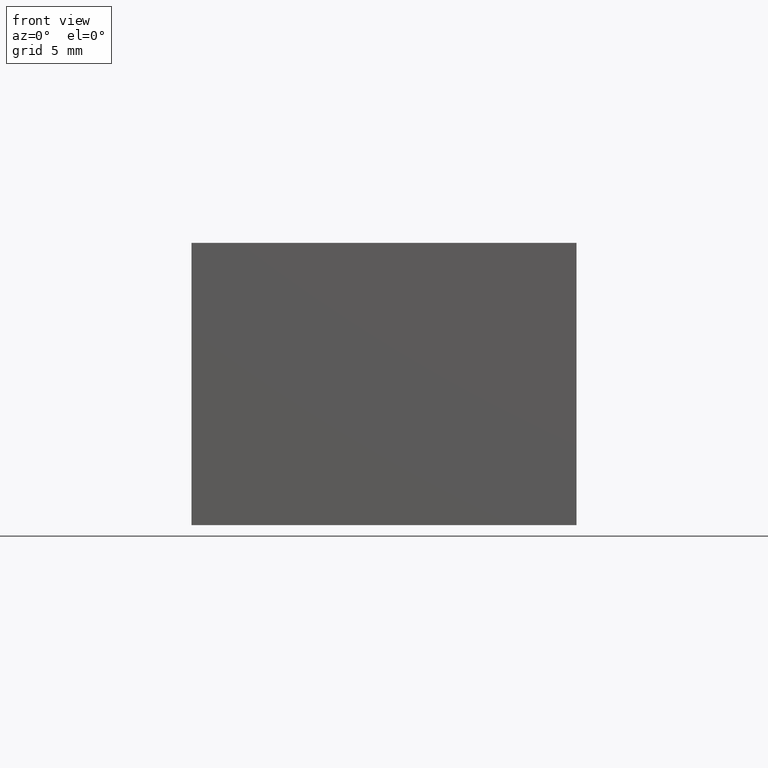
[diagram: clean part render]
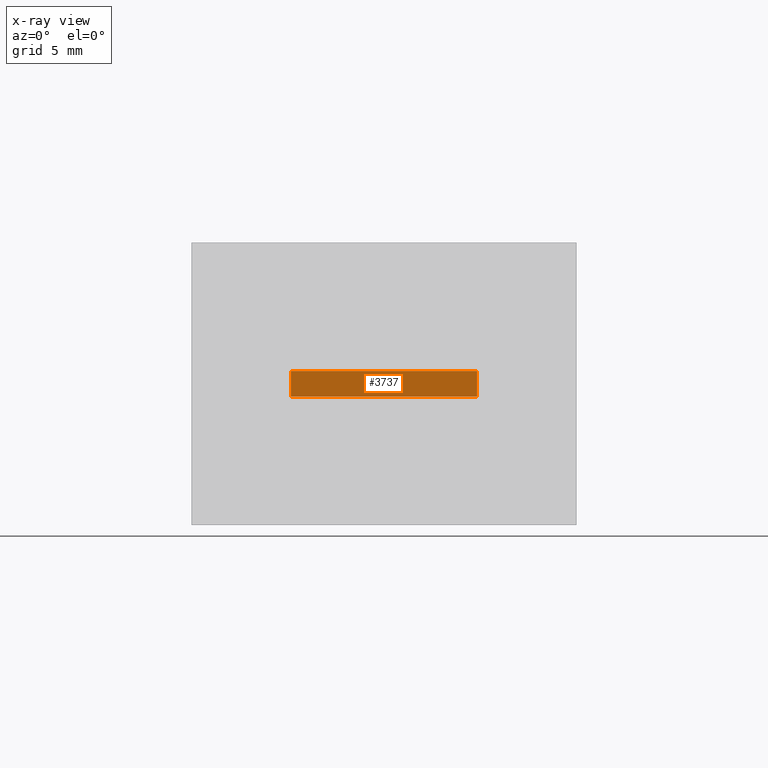
[diagram: x-ray — body ghosted, one internal face saturated and labeled with its STEP entity id]
A machine part, front view, then the same camera in x-ray: the body is ghosted and one INTERNAL B-rep face — a face not visible from any outside direction — is saturated and labeled: STEP entity #3737.
In plain terms, the highlighted planar face has unit normal (0, -1, 0).
Its self-contained STEP definition (entity closure, byte-faithful):
#274=FACE_OUTER_BOUND('',#485,.T.);
#485=EDGE_LOOP('',(#2487,#2488,#2489,#2490));
#726=LINE('',#4841,#1139);
#727=LINE('',#4844,#1140);
#728=LINE('',#4846,#1141);
#729=LINE('',#4847,#1142);
#1139=VECTOR('',#4115,2.);
#1140=VECTOR('',#4118,14.49999958278);
#1141=VECTOR('',#4119,14.49999958278);
#1142=VECTOR('',#4120,2.);
#1550=VERTEX_POINT('',#4837);
#1551=VERTEX_POINT('',#4839);
#1552=VERTEX_POINT('',#4843);
#1553=VERTEX_POINT('',#4845);
#1926=EDGE_CURVE('',#1550,#1551,#726,.T.);
#1927=EDGE_CURVE('',#1552,#1550,#727,.T.);
#1928=EDGE_CURVE('',#1553,#1551,#728,.T.);
#1929=EDGE_CURVE('',#1552,#1553,#729,.T.);
#2487=ORIENTED_EDGE('',*,*,#1927,.T.);
#2488=ORIENTED_EDGE('',*,*,#1926,.T.);
#2489=ORIENTED_EDGE('',*,*,#1928,.F.);
#2490=ORIENTED_EDGE('',*,*,#1929,.F.);
#3599=PLANE('',#3951);
#3737=ADVANCED_FACE('',(#274),#3599,.T.);
#3951=AXIS2_PLACEMENT_3D('',#4842,#4116,#4117);
#4115=DIRECTION('',(0.,0.,1.));
#4116=DIRECTION('center_axis',(0.,-1.,0.));
#4117=DIRECTION('ref_axis',(1.,0.,0.));
#4118=DIRECTION('',(1.,0.,0.));
#4119=DIRECTION('',(1.,0.,0.));
#4120=DIRECTION('',(0.,0.,1.));
#4837=CARTESIAN_POINT('',(15.7835910085003,0.782737006947173,0.));
#4839=CARTESIAN_POINT('',(15.7835910085003,0.782737006947172,2.));
#4841=CARTESIAN_POINT('',(15.7835910085003,0.782737006947173,0.));
#4842=CARTESIAN_POINT('Origin',(1.28359142572026,0.782737006947173,0.));
#4843=CARTESIAN_POINT('',(1.28359142572026,0.782737006947173,0.));
#4844=CARTESIAN_POINT('',(1.28359142572026,0.782737006947173,0.));
#4845=CARTESIAN_POINT('',(1.28359142572026,0.782737006947172,2.));
#4846=CARTESIAN_POINT('',(1.28359142572026,0.782737006947173,2.));
#4847=CARTESIAN_POINT('',(1.28359142572026,0.782737006947173,0.));